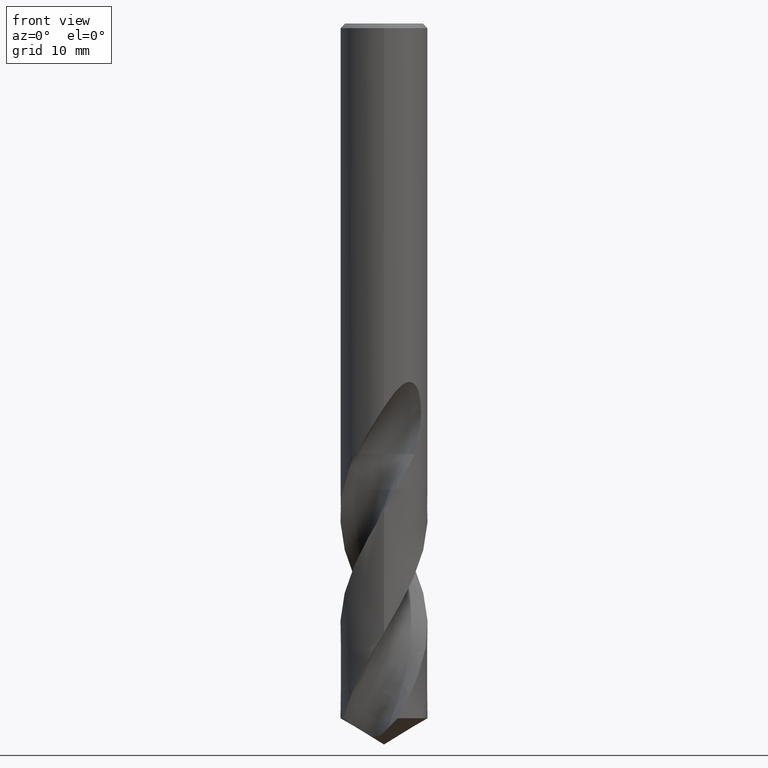
[diagram: clean part render]
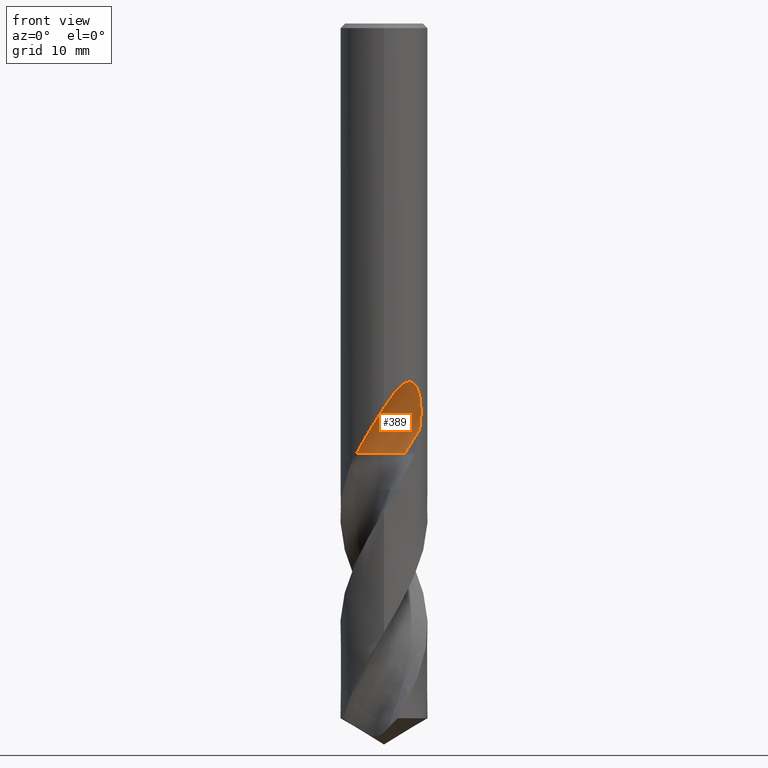
[diagram: same view with one face highlighted and labeled with its STEP entity id]
A machine part, front view. The second image highlights one B-rep face of the part: STEP entity #389.
In plain terms, the highlighted face is a SurfaceOfRevolution surface.
Its self-contained STEP definition (entity closure, byte-faithful):
#277=EDGE_CURVE('',#447,#639,#753,.T.);
#291=VERTEX_POINT('',#767);
#309=VERTEX_POINT('',#786);
#389=ADVANCED_FACE('',(#874),#875,.F.);
#443=EDGE_CURVE('',#461,#309,#937,.T.);
#447=VERTEX_POINT('',#941);
#461=VERTEX_POINT('',#955);
#481=EDGE_CURVE('',#309,#291,#976,.T.);
#549=EDGE_CURVE('',#639,#291,#1047,.T.);
#639=VERTEX_POINT('',#1149);
#657=EDGE_CURVE('',#461,#447,#1169,.T.);
#753=CIRCLE('',#1360,3.83333333);
#767=CARTESIAN_POINT('',(4.67844243896317,-3.34285452051212,-53.5504136850521));
#786=CARTESIAN_POINT('',(1.70232397107709E-012,-5.75,-50.5868840155759));
#874=FACE_OUTER_BOUND('',#3958,.T.);
#875=SURFACE_OF_REVOLUTION('',#3959,#3960);
#937=B_SPLINE_CURVE_WITH_KNOTS('',3,(#4922,#4923,#4924,#4925,#4926,#4927,#4928,#4929,#4930,#4931,#4932,#4933,#4934,#4935,#4936,#4937,#4938,#4939,#4940,#4941,#4942,#4943,#4944,#4945,#4946,#4947,#4948,#4949,#4950,#4951),.UNSPECIFIED.,.F.,.F.,(4,2,2,2,2,2,2,2,2,2,2,2,2,2,4),(0.0,2.8171749865563,4.35541909473943,5.74868100875242,7.36731579709897,9.31166694046346,10.9968691014969,11.76054553291,12.318699825472,12.8468769972929,13.516901218315,14.4971738216855,15.8907465909193,16.8026882899799,17.7610770432493),.UNSPECIFIED.);
#941=CARTESIAN_POINT('',(0.604991899305971,-1.77302571316492,-56.699));
#955=CARTESIAN_POINT('',(-3.66398183961201,-4.4314486433889,-56.699));
#976=B_SPLINE_CURVE_WITH_KNOTS('',3,(#5045,#5046,#5047,#5048,#5049,#5050,#5051,#5052,#5053,#5054,#5055,#5056,#5057,#5058,#5059,#5060,#5061,#5062,#5063,#5064,#5065,#5066,#5067,#5068,#5069,#5070,#5071,#5072,#5073,#5074),.UNSPECIFIED.,.F.,.F.,(4,2,2,2,2,2,2,2,2,2,2,2,2,2,4),(0.0,2.8171749865563,4.35541909473943,5.74868100875242,7.36731579709897,9.31166694046346,10.9968691014969,11.76054553291,12.318699825472,12.8468769972929,13.516901218315,14.4971738216855,15.8907465909193,16.8026882899799,17.7610770432493),.UNSPECIFIED.);
#1047=CIRCLE('',#5422,24.9852444101418);
#1149=CARTESIAN_POINT('',(2.7105759921207,-2.8477573378793,-56.699));
#1169=CIRCLE('',#6572,3.83333333);
#1360=AXIS2_PLACEMENT_3D('',#6908,#6909,#6910);
#3958=EDGE_LOOP('',(#7010,#7011,#7012,#7013,#7014));
#3959=(B_SPLINE_CURVE(3,(#7016,#7017,#7018,#7019,#7020,#7021,#7022,#7023,#7024),.UNSPECIFIED.,.F.,.F.)B_SPLINE_CURVE_WITH_KNOTS((4,1,3,1,4),(-2.8563692510947,-2.55358053354109,-2.25079181598748,-1.94800309843387,-1.64521438088025),.UNSPECIFIED.)RATIONAL_B_SPLINE_CURVE((1.09168100747776,1.03056033582592,0.96943966417408,1.03056033582592,1.09168100747776,1.03056033582592,0.96943966417408,1.03056033582592,1.09168100747776))BOUNDED_CURVE()REPRESENTATION_ITEM('')GEOMETRIC_REPRESENTATION_ITEM()CURVE());
#3960=AXIS1_PLACEMENT('',#7031,#7032);
#4922=CARTESIAN_POINT('',(-3.66398183961202,-4.4314486433889,-56.699));
#4923=CARTESIAN_POINT('',(-3.28469125345466,-4.74505124412977,-55.8992359066278));
#4924=CARTESIAN_POINT('',(-2.84859315606738,-5.02382214288511,-55.1535975358506));
#4925=CARTESIAN_POINT('',(-2.08816815528453,-5.36551442188281,-53.907957833142));
#4926=CARTESIAN_POINT('',(-1.81453142385869,-5.46380641301554,-53.4696997763265));
#4927=CARTESIAN_POINT('',(-1.28480531922885,-5.61070716067454,-52.6213459774143));
#4928=CARTESIAN_POINT('',(-1.03108114526332,-5.66260684249678,-52.2152045011142));
#4929=CARTESIAN_POINT('',(-0.481875227421434,-5.73751084499726,-51.3398619851425));
#4930=CARTESIAN_POINT('',(-0.181805950301667,-5.75509620801886,-50.8638091884993));
#4931=CARTESIAN_POINT('',(0.484571263925021,-5.74107906079819,-49.8453749828901));
#4932=CARTESIAN_POINT('',(0.879665693797984,-5.69772468487856,-49.2658747438574));
#4933=CARTESIAN_POINT('',(1.64155415497671,-5.52263921109525,-48.3103189418829));
#4934=CARTESIAN_POINT('',(2.06307642935365,-5.38924627147404,-47.8440452682675));
#4935=CARTESIAN_POINT('',(2.70104639404365,-5.08091277152312,-47.4074267193457));
#4936=CARTESIAN_POINT('',(2.91221879700352,-4.96450971598602,-47.2995207501852));
#4937=CARTESIAN_POINT('',(3.2822413707021,-4.72483298169877,-47.2166297098576));
#4938=CARTESIAN_POINT('',(3.43400839550245,-4.61568240865056,-47.215081989828));
#4939=CARTESIAN_POINT('',(3.71668266733197,-4.39085503134404,-47.2876291510386));
#4940=CARTESIAN_POINT('',(3.84031028491718,-4.28226790548659,-47.3556484995037));
#4941=CARTESIAN_POINT('',(4.09189111142438,-4.04430771785264,-47.5684731657907));
#4942=CARTESIAN_POINT('',(4.20828378483846,-3.92099078860778,-47.7256058683418));
#4943=CARTESIAN_POINT('',(4.44669360930046,-3.65171927497947,-48.1558839718304));
#4944=CARTESIAN_POINT('',(4.56064875590902,-3.5050816943212,-48.4750231568984));
#4945=CARTESIAN_POINT('',(4.77493717979459,-3.21063533872467,-49.3679391302827));
#4946=CARTESIAN_POINT('',(4.85240738776117,-3.0852154112669,-50.0038619484775));
#4947=CARTESIAN_POINT('',(4.89075188811313,-3.02388236629395,-51.180797908064));
#4948=CARTESIAN_POINT('',(4.88173600494501,-3.03883152767481,-51.6495115440474));
#4949=CARTESIAN_POINT('',(4.81805569776868,-3.13887432406016,-52.6007660828657));
#4950=CARTESIAN_POINT('',(4.76119673584027,-3.22703697232369,-53.0797265997126));
#4951=CARTESIAN_POINT('',(4.67844243896317,-3.34285452051213,-53.5504136850521));
#5045=CARTESIAN_POINT('',(-3.66398183961202,-4.4314486433889,-56.699));
#5046=CARTESIAN_POINT('',(-3.28469125345466,-4.74505124412977,-55.8992359066278));
#5047=CARTESIAN_POINT('',(-2.84859315606738,-5.02382214288511,-55.1535975358506));
#5048=CARTESIAN_POINT('',(-2.08816815528453,-5.36551442188281,-53.907957833142));
#5049=CARTESIAN_POINT('',(-1.81453142385869,-5.46380641301554,-53.4696997763265));
#5050=CARTESIAN_POINT('',(-1.28480531922885,-5.61070716067454,-52.6213459774143));
#5051=CARTESIAN_POINT('',(-1.03108114526332,-5.66260684249678,-52.2152045011142));
#5052=CARTESIAN_POINT('',(-0.481875227421434,-5.73751084499726,-51.3398619851425));
#5053=CARTESIAN_POINT('',(-0.181805950301667,-5.75509620801886,-50.8638091884993));
#5054=CARTESIAN_POINT('',(0.484571263925021,-5.74107906079819,-49.8453749828901));
#5055=CARTESIAN_POINT('',(0.879665693797984,-5.69772468487856,-49.2658747438574));
#5056=CARTESIAN_POINT('',(1.64155415497671,-5.52263921109525,-48.3103189418829));
#5057=CARTESIAN_POINT('',(2.06307642935365,-5.38924627147404,-47.8440452682675));
#5058=CARTESIAN_POINT('',(2.70104639404365,-5.08091277152312,-47.4074267193457));
#5059=CARTESIAN_POINT('',(2.91221879700352,-4.96450971598602,-47.2995207501852));
#5060=CARTESIAN_POINT('',(3.2822413707021,-4.72483298169877,-47.2166297098576));
#5061=CARTESIAN_POINT('',(3.43400839550245,-4.61568240865056,-47.215081989828));
#5062=CARTESIAN_POINT('',(3.71668266733197,-4.39085503134404,-47.2876291510386));
#5063=CARTESIAN_POINT('',(3.84031028491718,-4.28226790548659,-47.3556484995037));
#5064=CARTESIAN_POINT('',(4.09189111142438,-4.04430771785264,-47.5684731657907));
#5065=CARTESIAN_POINT('',(4.20828378483846,-3.92099078860778,-47.7256058683418));
#5066=CARTESIAN_POINT('',(4.44669360930046,-3.65171927497947,-48.1558839718304));
#5067=CARTESIAN_POINT('',(4.56064875590902,-3.5050816943212,-48.4750231568984));
#5068=CARTESIAN_POINT('',(4.77493717979459,-3.21063533872467,-49.3679391302827));
#5069=CARTESIAN_POINT('',(4.85240738776117,-3.0852154112669,-50.0038619484775));
#5070=CARTESIAN_POINT('',(4.89075188811313,-3.02388236629395,-51.180797908064));
#5071=CARTESIAN_POINT('',(4.88173600494501,-3.03883152767481,-51.6495115440474));
#5072=CARTESIAN_POINT('',(4.81805569776868,-3.13887432406016,-52.6007660828657));
#5073=CARTESIAN_POINT('',(4.76119673584027,-3.22703697232369,-53.0797265997126));
#5074=CARTESIAN_POINT('',(4.67844243896317,-3.34285452051213,-53.5504136850521));
#5422=AXIS2_PLACEMENT_3D('',#7165,#7166,#7167);
#6572=AXIS2_PLACEMENT_3D('',#7312,#7313,#7314);
#6908=CARTESIAN_POINT('',(-1.95789010162637E-005,-5.55831375109898,-56.699));
#6909=DIRECTION('',(-0.0,0.0,-1.0));
#6910=DIRECTION('',(-0.707101673628703,-0.7071118887075,0.0));
#7010=ORIENTED_EDGE('',*,*,#443,.F.);
#7011=ORIENTED_EDGE('',*,*,#657,.T.);
#7012=ORIENTED_EDGE('',*,*,#277,.T.);
#7013=ORIENTED_EDGE('',*,*,#549,.T.);
#7014=ORIENTED_EDGE('',*,*,#481,.F.);
#7016=CARTESIAN_POINT('',(2.7105759921207,-2.8477573378793,-56.699));
#7017=CARTESIAN_POINT('',(2.17965064876837,-2.3168243245632,-56.699));
#7018=CARTESIAN_POINT('',(0.799089746169325,-1.56241929950956,-56.699));
#7019=CARTESIAN_POINT('',(-0.765424404806389,-1.72786058519127,-56.699));
#7020=CARTESIAN_POINT('',(-1.45970477046695,-2.01377378653207,-56.699));
#7021=CARTESIAN_POINT('',(-2.15398513612752,-2.29968698787286,-56.699));
#7022=CARTESIAN_POINT('',(-3.38129679776306,-3.28395393988572,-56.699));
#7023=CARTESIAN_POINT('',(-3.8302457140797,-4.79177363008392,-56.699));
#7024=CARTESIAN_POINT('',(-3.83332076128285,-5.5426145779067,-56.699));
#7031=CARTESIAN_POINT('',(1.949178241525,-27.79166665,-57.9172364009531));
#7032=DIRECTION('',(-0.847998304005088,0.0,0.52999894000318));
#7165=CARTESIAN_POINT('',(1.949178241525,-27.79166665,-57.9172364009531));
#7166=DIRECTION('',(0.847998304005088,-5.69105789681651E-018,-0.52999894000318));
#7167=DIRECTION('',(0.0535598123958174,0.994880693111593,0.0856956998333079));
#7312=CARTESIAN_POINT('',(-1.95789010162637E-005,-5.55831375109898,-56.699));
#7313=DIRECTION('',(-0.0,0.0,-1.0));
#7314=DIRECTION('',(-0.707101673628703,-0.7071118887075,0.0));